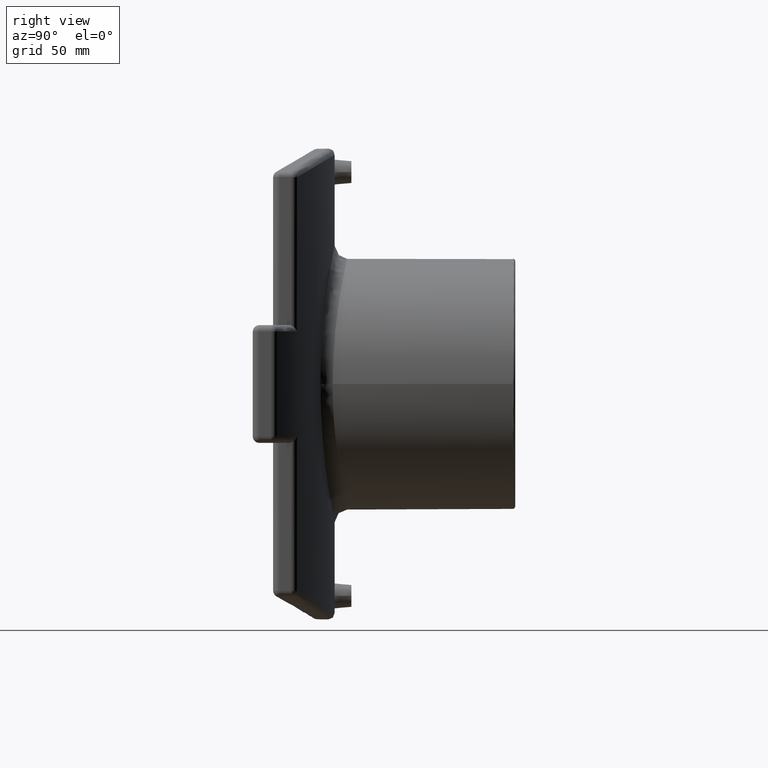
[diagram: clean part render]
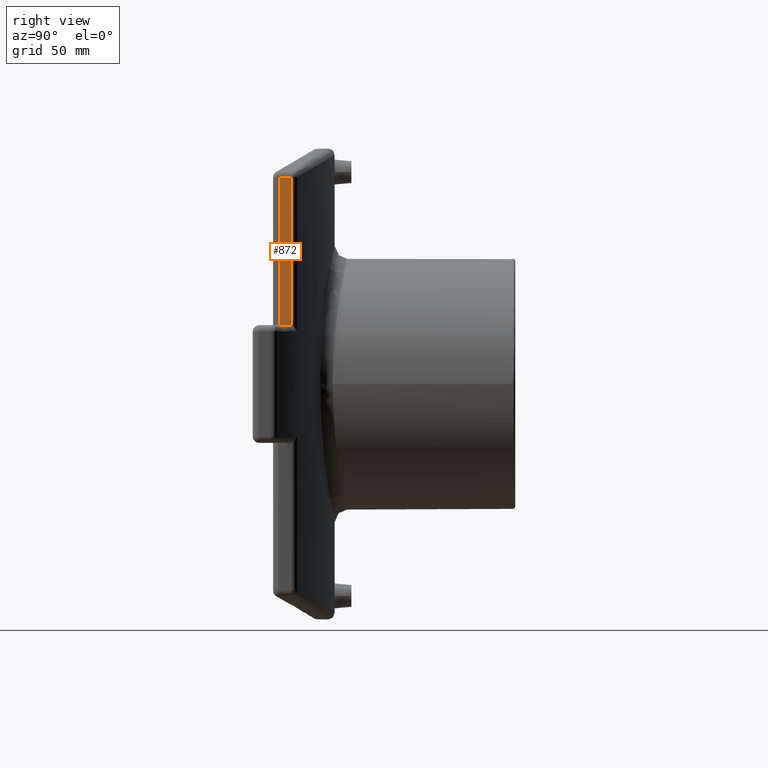
[diagram: same view with one face highlighted and labeled with its STEP entity id]
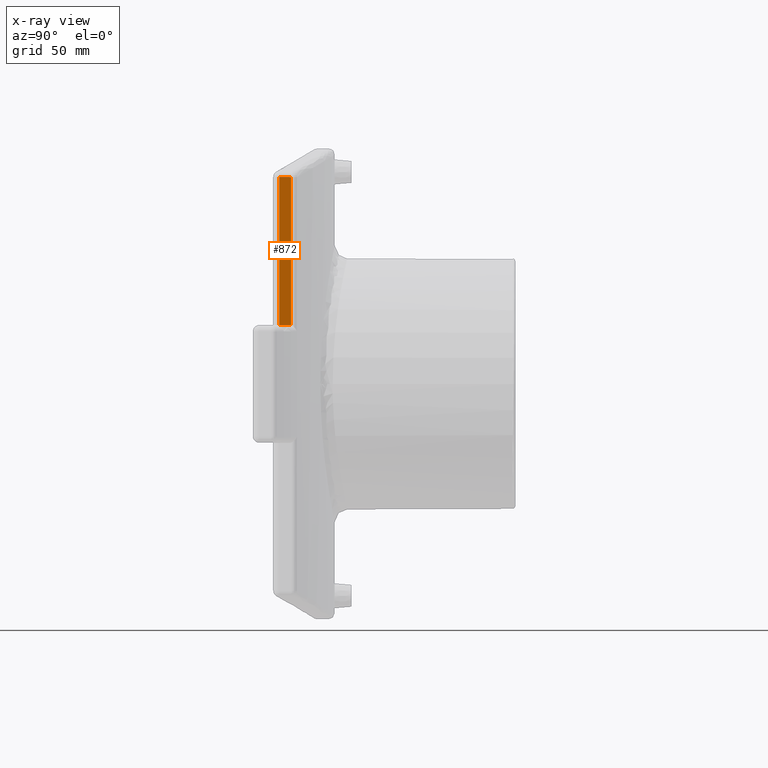
[diagram: x-ray of the same camera — body ghosted, the highlighted face saturated]
A machine part, right view. The second image highlights one B-rep face of the part: STEP entity #872.
The next image is the same camera in x-ray: the body ghosted, the highlighted face saturated — about 0% of this face is hidden behind the body in this view.
In plain terms, the highlighted planar face has unit normal (1, 0, 0).
Its self-contained STEP definition (entity closure, byte-faithful):
#40=LINE('',#2067,#70);
#42=LINE('',#2088,#72);
#44=LINE('',#2092,#74);
#57=LINE('',#2217,#87);
#70=VECTOR('',#1209,94.2576130740143);
#72=VECTOR('',#1221,7.43788437451492);
#74=VECTOR('',#1225,94.4951362688339);
#87=VECTOR('',#1268,5.99159146866569);
#111=B_SPLINE_CURVE_WITH_KNOTS('',3,(#2134,#2135,#2136,#2137,#2138,#2139),
 .UNSPECIFIED.,.F.,.F.,(4,2,4),(-1.9738216154413,-1.91633774546714,-1.8358762145237),
 .UNSPECIFIED.);
#150=PLANE('',#998);
#235=FACE_OUTER_BOUND('',#322,.T.);
#322=EDGE_LOOP('',(#763,#764,#765,#766,#767));
#451=VERTEX_POINT('',#1924);
#457=VERTEX_POINT('',#2004);
#459=VERTEX_POINT('',#2066);
#462=VERTEX_POINT('',#2091);
#465=VERTEX_POINT('',#2132);
#548=EDGE_CURVE('',#459,#457,#40,.T.);
#554=EDGE_CURVE('',#457,#451,#42,.T.);
#556=EDGE_CURVE('',#451,#462,#44,.T.);
#568=EDGE_CURVE('',#462,#465,#111,.T.);
#580=EDGE_CURVE('',#459,#465,#57,.T.);
#763=ORIENTED_EDGE('',*,*,#556,.F.);
#764=ORIENTED_EDGE('',*,*,#554,.F.);
#765=ORIENTED_EDGE('',*,*,#548,.F.);
#766=ORIENTED_EDGE('',*,*,#580,.T.);
#767=ORIENTED_EDGE('',*,*,#568,.F.);
#872=ADVANCED_FACE('',(#235),#150,.T.);
#998=AXIS2_PLACEMENT_3D('',#2216,#1266,#1267);
#1209=DIRECTION('',(0.,0.,1.));
#1221=DIRECTION('',(0.,1.,0.));
#1225=DIRECTION('',(0.,0.,-1.));
#1266=DIRECTION('center_axis',(1.,0.,0.));
#1267=DIRECTION('ref_axis',(0.,1.,0.));
#1268=DIRECTION('',(0.,1.,0.));
#1924=CARTESIAN_POINT('',(141.750000000004,387.228533943457,131.757613074014));
#2004=CARTESIAN_POINT('',(141.750000000004,379.790649568942,131.757613074014));
#2066=CARTESIAN_POINT('',(141.750000000004,379.790649568942,37.5));
#2067=CARTESIAN_POINT('',(141.750000000004,379.790649568942,0.));
#2088=CARTESIAN_POINT('',(141.750000000004,0.,131.757613074014));
#2091=CARTESIAN_POINT('',(141.750000000004,387.228533943457,37.2624768051804));
#2092=CARTESIAN_POINT('',(141.750000000004,387.228533943457,0.));
#2132=CARTESIAN_POINT('',(141.750000000004,385.782241037608,37.5));
#2134=CARTESIAN_POINT('Ctrl Pts',(141.750000000004,387.228533943457,37.2624768051804));
#2135=CARTESIAN_POINT('Ctrl Pts',(141.750000000004,387.038891925898,37.3267466109439));
#2136=CARTESIAN_POINT('Ctrl Pts',(141.750000000004,386.836318140981,37.3806551270212));
#2137=CARTESIAN_POINT('Ctrl Pts',(141.750000000004,386.343547032284,37.4746962943939));
#2138=CARTESIAN_POINT('Ctrl Pts',(141.750000000004,386.050446140753,37.5));
#2139=CARTESIAN_POINT('Ctrl Pts',(141.750000000004,385.782241037608,37.5));
#2216=CARTESIAN_POINT('Origin',(141.750000000004,374.041358007372,0.));
#2217=CARTESIAN_POINT('',(141.750000000004,374.772601595261,37.5));